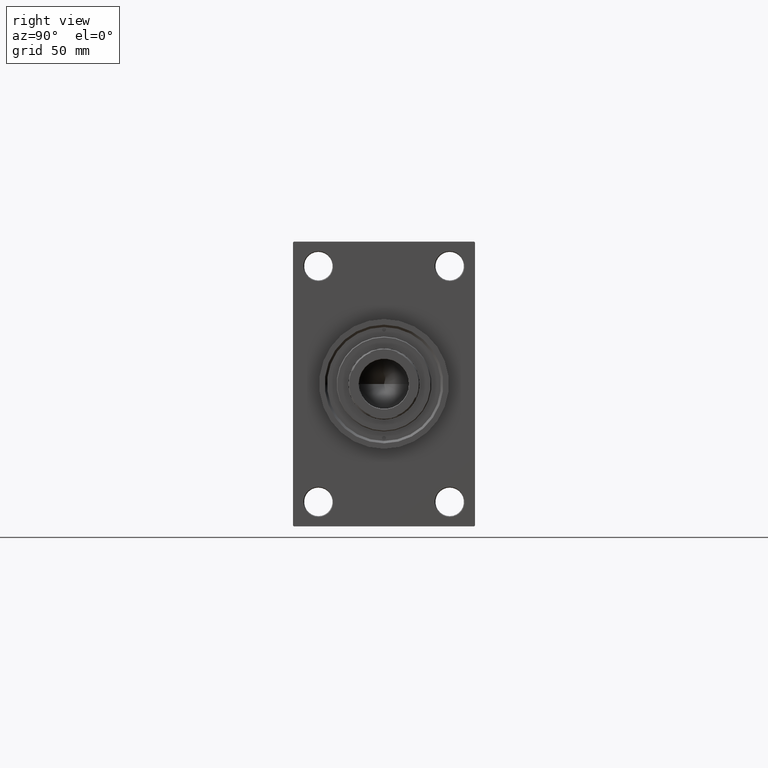
[diagram: clean part render]
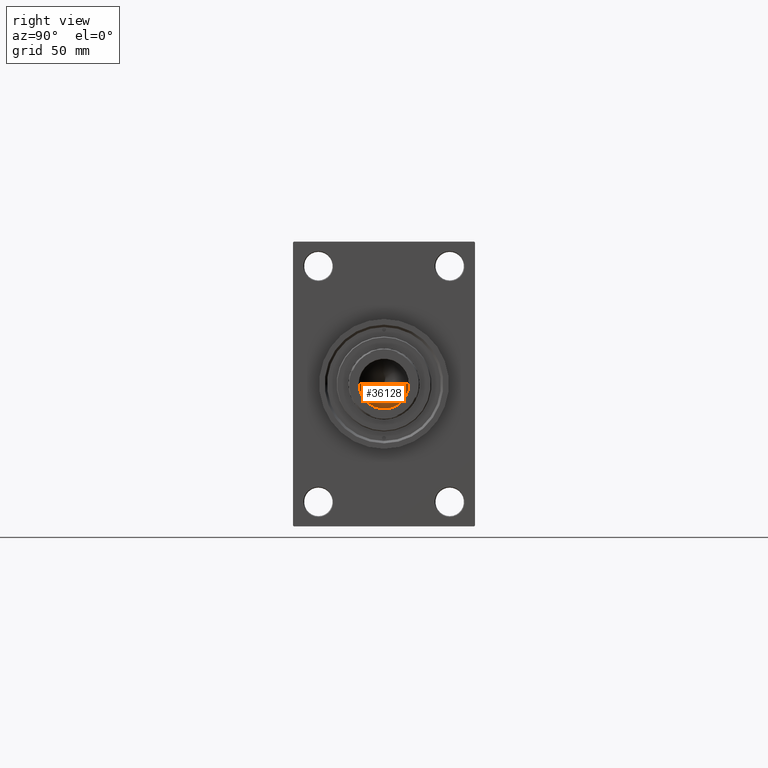
[diagram: same view with one face highlighted and labeled with its STEP entity id]
A machine part, right view. The second image highlights one B-rep face of the part: STEP entity #36128.
In plain terms, the highlighted conical surface has half-angle 59 deg.
Its self-contained STEP definition (entity closure, byte-faithful):
#2170 = EDGE_CURVE ( 'NONE', #47914, #25581, #10755, .T. ) ;
#2872 = LINE ( 'NONE', #14265, #16338 ) ;
#6435 = EDGE_LOOP ( 'NONE', ( #24784, #32560, #32577 ) ) ;
#8511 = CARTESIAN_POINT ( 'NONE',  ( 0.000000000000000000, 0.000000000000000000, 291.0000000000000000 ) ) ;
#8610 = CARTESIAN_POINT ( 'NONE',  ( -15.74999999999998934, 1.928818708657080161E-15, 291.0000000000000000 ) ) ;
#8739 = EDGE_CURVE ( 'NONE', #25581, #34574, #35242, .T. ) ;
#10630 = DIRECTION ( 'NONE',  ( -0.8571673007021105573, 1.049727191138616477E-16, 0.5150380749100571531 ) ) ;
#10738 = CARTESIAN_POINT ( 'NONE',  ( -1.584115414415908206E-14, 0.000000000000000000, 281.5364452503158645 ) ) ;
#10755 = LINE ( 'NONE', #29380, #42875 ) ;
#12612 = DIRECTION ( 'NONE',  ( -0.000000000000000000, -0.000000000000000000, 1.000000000000000000 ) ) ;
#12696 = CONICAL_SURFACE ( 'NONE', #19644, 15.74999999999998934, 1.029744258676650981 ) ;
#14265 = CARTESIAN_POINT ( 'NONE',  ( -15.74999999999998934, 1.928818708657080161E-15, 291.0000000000000000 ) ) ;
#14574 = CARTESIAN_POINT ( 'NONE',  ( 0.000000000000000000, 0.000000000000000000, 291.0000000000000000 ) ) ;
#16338 = VECTOR ( 'NONE', #10630, 1000.000000000000000 ) ;
#17954 = DIRECTION ( 'NONE',  ( 1.000000000000000000, 0.000000000000000000, 0.000000000000000000 ) ) ;
#19644 = AXIS2_PLACEMENT_3D ( 'NONE', #14574, #30049, #17954 ) ;
#20358 = DIRECTION ( 'NONE',  ( 1.000000000000000000, 0.000000000000000000, 0.000000000000000000 ) ) ;
#21347 = AXIS2_PLACEMENT_3D ( 'NONE', #8511, #12612, #20358 ) ;
#24784 = ORIENTED_EDGE ( 'NONE', *, *, #26078, .F. ) ;
#25506 = DIRECTION ( 'NONE',  ( 0.8571673007021105573, 0.000000000000000000, 0.5150380749100571531 ) ) ;
#25581 = VERTEX_POINT ( 'NONE', #42235 ) ;
#26078 = EDGE_CURVE ( 'NONE', #47914, #34574, #2872, .T. ) ;
#29380 = CARTESIAN_POINT ( 'NONE',  ( 15.74999999999998934, 0.000000000000000000, 291.0000000000000000 ) ) ;
#30049 = DIRECTION ( 'NONE',  ( -0.000000000000000000, -0.000000000000000000, 1.000000000000000000 ) ) ;
#32560 = ORIENTED_EDGE ( 'NONE', *, *, #2170, .T. ) ;
#32577 = ORIENTED_EDGE ( 'NONE', *, *, #8739, .T. ) ;
#34574 = VERTEX_POINT ( 'NONE', #8610 ) ;
#35242 = CIRCLE ( 'NONE', #21347, 15.74999999999998934 ) ;
#36128 = ADVANCED_FACE ( 'NONE', ( #36579 ), #12696, .F. ) ;
#36579 = FACE_OUTER_BOUND ( 'NONE', #6435, .T. ) ;
#42235 = CARTESIAN_POINT ( 'NONE',  ( 15.74999999999998934, 0.000000000000000000, 291.0000000000000000 ) ) ;
#42875 = VECTOR ( 'NONE', #25506, 1000.000000000000000 ) ;
#47914 = VERTEX_POINT ( 'NONE', #10738 ) ;